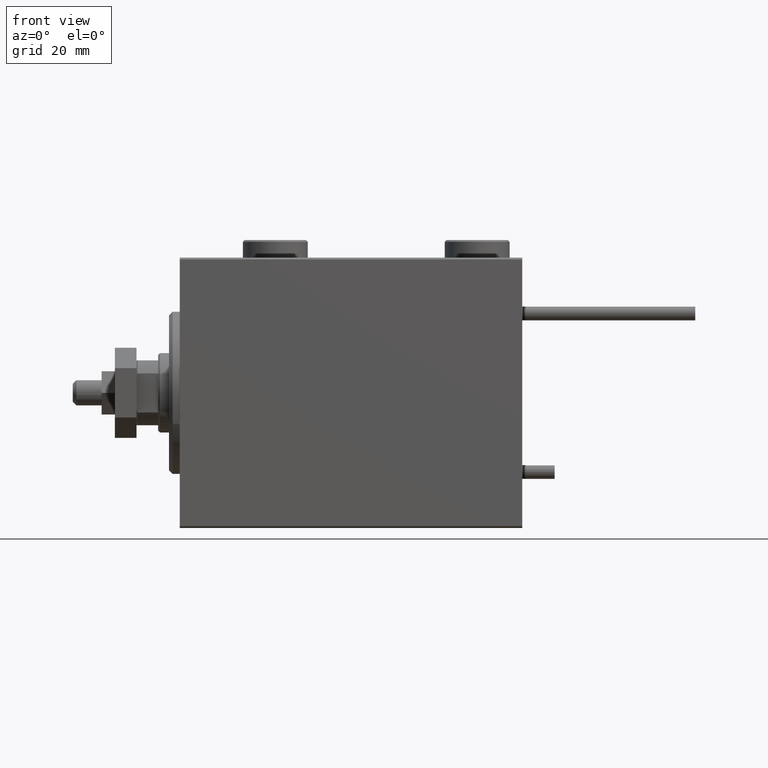
[diagram: clean part render]
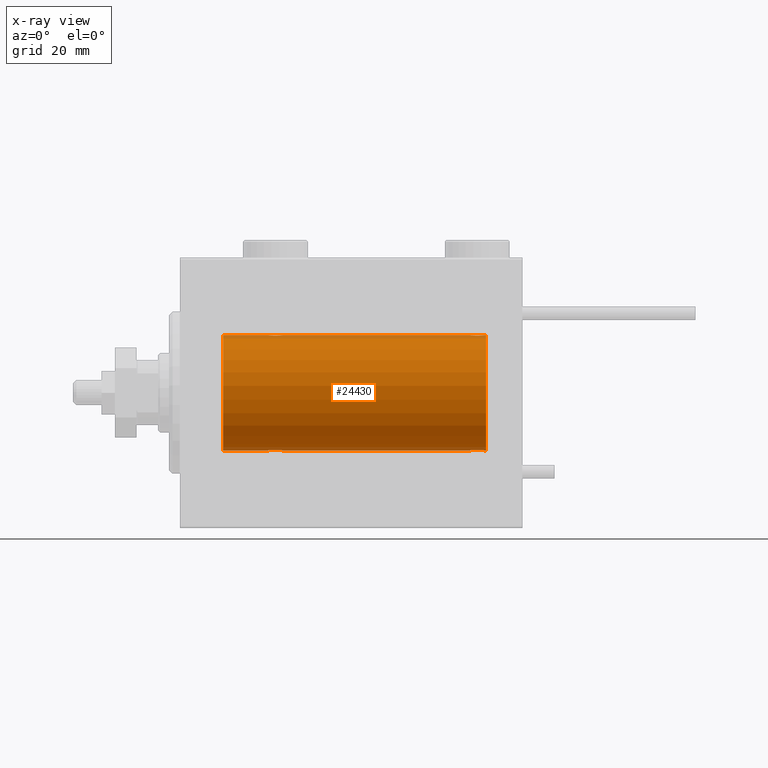
[diagram: x-ray — body ghosted, one internal face saturated and labeled with its STEP entity id]
A machine part, front view, then the same camera in x-ray: the body is ghosted and one INTERNAL B-rep face — a face not visible from any outside direction — is saturated and labeled: STEP entity #24430.
In plain terms, the highlighted cylindrical surface (partial cylindrical patch) has radius 16 mm, axis along (-1, -0, -0).
Its self-contained STEP definition (entity closure, byte-faithful):
#721 = CARTESIAN_POINT ( 'NONE',  ( 27.38592149968495448, -1.797863738508698628, 15.89874935709251247 ) ) ;
#1211 = CARTESIAN_POINT ( 'NONE',  ( 83.50078365753404341, -1.736521253711141854, 15.90565326803670665 ) ) ;
#1604 = DIRECTION ( 'NONE',  ( 0.000000000000000000, 0.000000000000000000, 1.000000000000000000 ) ) ;
#1712 = CARTESIAN_POINT ( 'NONE',  ( 80.90061418674622473, -1.228793614424114056, 15.95381972293797368 ) ) ;
#2211 = CARTESIAN_POINT ( 'NONE',  ( 27.01937114547927266, -1.935780515549989422, -15.88248768234623221 ) ) ;
#2217 = CARTESIAN_POINT ( 'NONE',  ( 80.50000000000004263, -0.2611263091397195146, 16.00000000000000000 ) ) ;
#2726 = CARTESIAN_POINT ( 'NONE',  ( 28.09938581325380724, -1.228793614424118052, -15.95381972293797013 ) ) ;
#2758 = ORIENTED_EDGE ( 'NONE', *, *, #7518, .T. ) ;
#2913 = EDGE_LOOP ( 'NONE', ( #18872, #40933, #22338, #40451, #37908, #2758, #16481, #37561, #17352, #16243, #3818, #37974 ) ) ;
#3818 = ORIENTED_EDGE ( 'NONE', *, *, #6967, .T. ) ;
#4710 = EDGE_CURVE ( 'NONE', #40160, #22631, #35966, .T. ) ;
#4932 = EDGE_CURVE ( 'NONE', #38989, #22385, #45041, .T. ) ;
#5892 = VERTEX_POINT ( 'NONE', #49384 ) ;
#5917 = CARTESIAN_POINT ( 'NONE',  ( 83.50320784791315987, -1.735114343256370262, -15.90580722143557146 ) ) ;
#6457 = EDGE_CURVE ( 'NONE', #44643, #31764, #11840, .T. ) ;
#6627 = CARTESIAN_POINT ( 'NONE',  ( 25.28178127159715061, -1.591545514129670158, -15.92081325887754595 ) ) ;
#6684 = CARTESIAN_POINT ( 'NONE',  ( 81.28178127159715416, -1.591545514129675043, -15.92081325887754417 ) ) ;
#6890 = CARTESIAN_POINT ( 'NONE',  ( 26.36919591423421139, -2.000094120337573944, -15.87449600834271024 ) ) ;
#6967 = EDGE_CURVE ( 'NONE', #41528, #43164, #49333, .T. ) ;
#6981 = CARTESIAN_POINT ( 'NONE',  ( 24.90061418674619986, -1.228793614424120717, 15.95381972293797013 ) ) ;
#7159 = CARTESIAN_POINT ( 'NONE',  ( 25.98335998918949841, -1.936513707523808581, -15.88239801746205160 ) ) ;
#7518 = EDGE_CURVE ( 'NONE', #42066, #5892, #42814, .T. ) ;
#7707 = CARTESIAN_POINT ( 'NONE',  ( 24.50000000000000000, -2.739674480787312950E-23, 16.00000000000000000 ) ) ;
#8530 = EDGE_CURVE ( 'NONE', #44643, #38989, #22766, .T. ) ;
#9094 = CARTESIAN_POINT ( 'NONE',  ( 28.49999999999999645, 1.959434851239213200E-15, -16.00000000000000000 ) ) ;
#9495 = AXIS2_PLACEMENT_3D ( 'NONE', #19970, #35875, #39252 ) ;
#9594 = CARTESIAN_POINT ( 'NONE',  ( 81.85623329282658744, -1.898087287925303457, -15.88709570026284545 ) ) ;
#10091 = CARTESIAN_POINT ( 'NONE',  ( 84.44751141031271402, -0.5244724041436332751, -15.99321727742821331 ) ) ;
#10298 = CARTESIAN_POINT ( 'NONE',  ( 84.09763135957196312, -1.231048876942793413, 15.95364199493483426 ) ) ;
#10852 = CARTESIAN_POINT ( 'NONE',  ( 85.00000000000000000, 0.000000000000000000, 16.00000000000000000 ) ) ;
#10915 = CARTESIAN_POINT ( 'NONE',  ( 24.50000000000000000, -0.2611263091397195146, 15.99999999999999645 ) ) ;
#11726 = EDGE_CURVE ( 'NONE', #5892, #22631, #31976, .T. ) ;
#11840 = CIRCLE ( 'NONE', #45088, 16.00000000000000000 ) ;
#12729 = CARTESIAN_POINT ( 'NONE',  ( 28.49999999999999645, -1.179009551424829015E-15, 16.00000000000000000 ) ) ;
#13086 = DIRECTION ( 'NONE',  ( -1.000000000000000000, 0.000000000000000000, 0.000000000000000000 ) ) ;
#13335 = CARTESIAN_POINT ( 'NONE',  ( 85.00000000000000000, 0.000000000000000000, 0.000000000000000000 ) ) ;
#13458 = CARTESIAN_POINT ( 'NONE',  ( 80.75183372993789988, -1.005876079953899049, 15.97016854943969832 ) ) ;
#13712 = CARTESIAN_POINT ( 'NONE',  ( 83.82104334803406687, -1.507256214862777277, 15.92911555180481820 ) ) ;
#13969 = CARTESIAN_POINT ( 'NONE',  ( 80.50000000000001421, -2.738806733791569837E-23, 16.00000000000000000 ) ) ;
#14016 = CARTESIAN_POINT ( 'NONE',  ( 81.98335998918950906, -1.936513707523812577, -15.88239801746205160 ) ) ;
#14212 = CARTESIAN_POINT ( 'NONE',  ( 83.14376670717345519, -1.898087287925297240, 15.88709570026284723 ) ) ;
#14529 = CARTESIAN_POINT ( 'NONE',  ( 81.61407850031505973, -1.797863738508702180, -15.89874935709250892 ) ) ;
#14737 = CARTESIAN_POINT ( 'NONE',  ( 24.90236864042802978, -1.231048876942801185, -15.95364199493483959 ) ) ;
#15082 = CARTESIAN_POINT ( 'NONE',  ( 25.61153859170719471, -1.796613193944152531, 15.89889131367403685 ) ) ;
#15341 = CARTESIAN_POINT ( 'NONE',  ( 26.63080408576579927, -2.000094120337576609, 15.87449600834271735 ) ) ;
#16125 = CARTESIAN_POINT ( 'NONE',  ( 28.44674004695639624, -0.5272875822566822634, 15.99312147175147025 ) ) ;
#16243 = ORIENTED_EDGE ( 'NONE', *, *, #28488, .F. ) ;
#16481 = ORIENTED_EDGE ( 'NONE', *, *, #11726, .T. ) ;
#17130 = CARTESIAN_POINT ( 'NONE',  ( 81.17695155286794773, -1.505501573616967459, 15.92928245046055302 ) ) ;
#17154 = CARTESIAN_POINT ( 'NONE',  ( 28.49999999999999289, -0.2645044045393371013, 16.00000000000000000 ) ) ;
#17352 = ORIENTED_EDGE ( 'NONE', *, *, #31560, .T. ) ;
#17385 = CARTESIAN_POINT ( 'NONE',  ( 81.49679215208685434, -1.735114343256364267, 15.90580722143557502 ) ) ;
#17625 = CARTESIAN_POINT ( 'NONE',  ( 81.61153859170718761, -1.796613193944148978, 15.89889131367403330 ) ) ;
#17926 = CARTESIAN_POINT ( 'NONE',  ( 82.36919591423422560, -2.000094120337580605, -15.87449600834270669 ) ) ;
#18134 = CARTESIAN_POINT ( 'NONE',  ( 84.44674004695642111, -0.5272875822566781556, 15.99312147175147025 ) ) ;
#18695 = CARTESIAN_POINT ( 'NONE',  ( 81.17895665196597577, -1.507256214862789268, -15.92911555180481464 ) ) ;
#18859 = DIRECTION ( 'NONE',  ( -1.000000000000000000, -0.000000000000000000, -0.000000000000000000 ) ) ;
#18872 = ORIENTED_EDGE ( 'NONE', *, *, #6457, .F. ) ;
#18904 = CARTESIAN_POINT ( 'NONE',  ( 24.55325995304360376, -0.5272875822566845949, -15.99312147175147025 ) ) ;
#18994 = CARTESIAN_POINT ( 'NONE',  ( 25.17695155286791930, -1.505501573616972122, 15.92928245046054769 ) ) ;
#19105 = DIRECTION ( 'NONE',  ( -1.000000000000000000, -0.000000000000000000, -0.000000000000000000 ) ) ;
#19157 = CARTESIAN_POINT ( 'NONE',  ( 27.38846140829280529, -1.796613193944151865, -15.89889131367403330 ) ) ;
#19437 = VECTOR ( 'NONE', #18859, 1000.000000000000000 ) ;
#19970 = CARTESIAN_POINT ( 'NONE',  ( 11.99999999999999645, 0.000000000000000000, 0.000000000000000000 ) ) ;
#20032 = CARTESIAN_POINT ( 'NONE',  ( 28.09763135957198088, -1.231048876942798520, 15.95364199493483071 ) ) ;
#20544 = CARTESIAN_POINT ( 'NONE',  ( 27.82104334803405266, -1.507256214862782606, 15.92911555180481464 ) ) ;
#21832 = CARTESIAN_POINT ( 'NONE',  ( 83.01937114547929752, -1.935780515549991199, -15.88248768234623576 ) ) ;
#22087 = CARTESIAN_POINT ( 'NONE',  ( 81.49921634246595659, -1.736521253711148072, -15.90565326803670310 ) ) ;
#22338 = ORIENTED_EDGE ( 'NONE', *, *, #4932, .T. ) ;
#22385 = VERTEX_POINT ( 'NONE', #42414 ) ;
#22547 = CARTESIAN_POINT ( 'NONE',  ( 27.14636362870458086, -1.897207606501645438, -15.88720136683947182 ) ) ;
#22605 = CARTESIAN_POINT ( 'NONE',  ( 82.23917179650634068, -1.987201773464433607, -15.87613558886576470 ) ) ;
#22619 = CARTESIAN_POINT ( 'NONE',  ( 85.00000000000000000, 0.000000000000000000, 16.00000000000000000 ) ) ;
#22631 = VERTEX_POINT ( 'NONE', #26221 ) ;
#22766 = LINE ( 'NONE', #38654, #19437 ) ;
#22815 = CARTESIAN_POINT ( 'NONE',  ( 27.82304844713207004, -1.505501573616970568, -15.92928245046055302 ) ) ;
#23004 = EDGE_CURVE ( 'NONE', #31764, #43164, #35380, .T. ) ;
#23152 = LINE ( 'NONE', #22619, #39098 ) ;
#23177 = EDGE_CURVE ( 'NONE', #28310, #42066, #33999, .T. ) ;
#23989 = VECTOR ( 'NONE', #31470, 1000.000000000000000 ) ;
#24289 = VECTOR ( 'NONE', #39084, 1000.000000000000000 ) ;
#24430 = ADVANCED_FACE ( 'NONE', ( #48785 ), #28485, .F. ) ;
#25195 = CARTESIAN_POINT ( 'NONE',  ( 82.63080408576580282, -2.000094120337573944, 15.87449600834271024 ) ) ;
#25510 = CARTESIAN_POINT ( 'NONE',  ( 84.24816627006212855, -1.005876079953902824, -15.97016854943970188 ) ) ;
#25708 = CARTESIAN_POINT ( 'NONE',  ( 81.27971966521590730, -1.589957129871030439, 15.92097237843275259 ) ) ;
#25756 = CARTESIAN_POINT ( 'NONE',  ( 83.82304844713208070, -1.505501573616973898, -15.92928245046055302 ) ) ;
#25950 = CARTESIAN_POINT ( 'NONE',  ( 24.50000000000000000, -2.103177090749212087E-15, -16.00000000000000000 ) ) ;
#25956 = CARTESIAN_POINT ( 'NONE',  ( 83.71821872840287426, -1.591545514129668826, 15.92081325887754417 ) ) ;
#26007 = CARTESIAN_POINT ( 'NONE',  ( 83.72028033478413533, -1.589957129871036212, -15.92097237843274904 ) ) ;
#26221 = CARTESIAN_POINT ( 'NONE',  ( 11.99999999999999645, 0.000000000000000000, 16.00000000000000000 ) ) ;
#26601 = VECTOR ( 'NONE', #34921, 1000.000000000000000 ) ;
#26816 = CARTESIAN_POINT ( 'NONE',  ( 24.55248858968731440, -0.5244724041436320539, 15.99321727742821331 ) ) ;
#27085 = EDGE_CURVE ( 'NONE', #22385, #28310, #31005, .T. ) ;
#27349 = CARTESIAN_POINT ( 'NONE',  ( 26.76082820349363800, -1.987201773464431387, 15.87613558886576115 ) ) ;
#27634 = CARTESIAN_POINT ( 'NONE',  ( 85.00000000000000000, 0.000000000000000000, 16.00000000000000000 ) ) ;
#28310 = VERTEX_POINT ( 'NONE', #9094 ) ;
#28485 = CYLINDRICAL_SURFACE ( 'NONE', #39834, 16.00000000000000000 ) ;
#28488 = EDGE_CURVE ( 'NONE', #41528, #41369, #23152, .T. ) ;
#28593 = CARTESIAN_POINT ( 'NONE',  ( 85.00000000000000000, 0.000000000000000000, 16.00000000000000000 ) ) ;
#28878 = CARTESIAN_POINT ( 'NONE',  ( 27.50078365753405052, -1.736521253711144519, 15.90565326803671020 ) ) ;
#29056 = B_SPLINE_CURVE_WITH_KNOTS ( 'NONE', 3,
 ( #42968, #10915, #26816, #42699, #6981, #18994, #34888, #50761, #15082, #30974, #46846, #35151, #51024, #15341, #27349, #43227, #35934, #721, #28878, #43745, #20544, #20032, #40351, #16125, #17154, #12729 ),
 .UNSPECIFIED., .F., .F.,
 ( 4, 2, 2, 2, 2, 2, 2, 2, 2, 2, 2, 2, 4 ),
 ( 0.006259031236593864261, 0.007041222816026932417, 0.007823414395460000573, 0.008214510185176535084, 0.008605605974893067861, 0.008996701764609602373, 0.009387797554326136884, 0.009778893344042669661, 0.01016998913375920244, 0.01056108492347573695, 0.01095218071319226973, 0.01173437229262533008, 0.01251656387205839042 ),
 .UNSPECIFIED. ) ;
#29105 = CARTESIAN_POINT ( 'NONE',  ( 82.23629537121827582, -1.986819684797419105, 15.87618369521984185 ) ) ;
#29354 = CARTESIAN_POINT ( 'NONE',  ( 81.85363637129547953, -1.897207606501643218, 15.88720136683947182 ) ) ;
#29493 = CARTESIAN_POINT ( 'NONE',  ( 85.00000000000000000, 0.000000000000000000, 0.000000000000000000 ) ) ;
#29858 = CARTESIAN_POINT ( 'NONE',  ( 25.17895665196595090, -1.507256214862784161, -15.92911555180481820 ) ) ;
#29863 = CARTESIAN_POINT ( 'NONE',  ( 82.76082820349364511, -1.987201773464428056, 15.87613558886576826 ) ) ;
#29911 = CARTESIAN_POINT ( 'NONE',  ( 80.75321871145308705, -1.008257970366817746, -15.97001510549667103 ) ) ;
#30105 = CARTESIAN_POINT ( 'NONE',  ( 28.24816627006211434, -1.005876079953898827, -15.97016854943970188 ) ) ;
#30162 = CARTESIAN_POINT ( 'NONE',  ( 80.50000000000001421, -8.578174582294765095E-15, -16.00000000000000000 ) ) ;
#30423 = CARTESIAN_POINT ( 'NONE',  ( 80.55325995304360731, -0.5272875822566887027, -15.99312147175147381 ) ) ;
#30974 = CARTESIAN_POINT ( 'NONE',  ( 25.85363637129542269, -1.897207606501645438, 15.88720136683947537 ) ) ;
#31005 = LINE ( 'NONE', #47412, #26601 ) ;
#31470 = DIRECTION ( 'NONE',  ( -1.000000000000000000, -0.000000000000000000, -0.000000000000000000 ) ) ;
#31560 = EDGE_CURVE ( 'NONE', #40160, #41369, #29056, .T. ) ;
#31764 = VERTEX_POINT ( 'NONE', #10852 ) ;
#31976 = CIRCLE ( 'NONE', #9495, 16.00000000000000000 ) ;
#33390 = DIRECTION ( 'NONE',  ( 0.000000000000000000, 0.000000000000000000, 1.000000000000000000 ) ) ;
#33554 = CARTESIAN_POINT ( 'NONE',  ( 24.50000000000000000, -2.103177090749212087E-15, -16.00000000000000000 ) ) ;
#33771 = CARTESIAN_POINT ( 'NONE',  ( 81.98062885452075932, -1.935780515549992087, 15.88248768234623576 ) ) ;
#33999 = B_SPLINE_CURVE_WITH_KNOTS ( 'NONE', 3,
 ( #49885, #38699, #45731, #30105, #2726, #22815, #42344, #50933, #19157, #22547, #2211, #35060, #42606, #6890, #46240, #7159, #34533, #38440, #50416, #6627, #29858, #14737, #42086, #18904, #46759, #25950 ),
 .UNSPECIFIED., .F., .F.,
 ( 4, 2, 2, 2, 2, 2, 2, 2, 2, 2, 2, 2, 4 ),
 ( 0.006259031236593880741, 0.007041222816026947162, 0.007823414395460012716, 0.008214510185176545493, 0.008605605974893078269, 0.008996701764609611046, 0.009387797554326143823, 0.009778893344042676600, 0.01016998913375920938, 0.01056108492347574215, 0.01095218071319227493, 0.01173437229262534742, 0.01251656387205841818 ),
 .UNSPECIFIED. ) ;
#34337 = VECTOR ( 'NONE', #19105, 1000.000000000000000 ) ;
#34533 = CARTESIAN_POINT ( 'NONE',  ( 25.85623329282658389, -1.898087287925296573, -15.88709570026284190 ) ) ;
#34888 = CARTESIAN_POINT ( 'NONE',  ( 25.27971966521589664, -1.589957129871031105, 15.92097237843274549 ) ) ;
#34921 = DIRECTION ( 'NONE',  ( -1.000000000000000000, -0.000000000000000000, -0.000000000000000000 ) ) ;
#35060 = CARTESIAN_POINT ( 'NONE',  ( 26.76370462878176326, -1.986819684797417551, -15.87618369521984185 ) ) ;
#35151 = CARTESIAN_POINT ( 'NONE',  ( 26.23629537121825095, -1.986819684797419994, 15.87618369521984185 ) ) ;
#35380 = LINE ( 'NONE', #28593, #23989 ) ;
#35875 = DIRECTION ( 'NONE',  ( -1.000000000000000000, 0.000000000000000000, 0.000000000000000000 ) ) ;
#35934 = CARTESIAN_POINT ( 'NONE',  ( 27.14376670717340900, -1.898087287925299016, 15.88709570026284545 ) ) ;
#35966 = LINE ( 'NONE', #27634, #24289 ) ;
#36725 = CARTESIAN_POINT ( 'NONE',  ( 85.00000000000000000, 1.959434878635765131E-15, -16.00000000000000000 ) ) ;
#37322 = DIRECTION ( 'NONE',  ( -1.000000000000000000, -0.000000000000000000, -0.000000000000000000 ) ) ;
#37481 = CARTESIAN_POINT ( 'NONE',  ( 83.14636362870456310, -1.897207606501649435, -15.88720136683946826 ) ) ;
#37561 = ORIENTED_EDGE ( 'NONE', *, *, #4710, .F. ) ;
#37681 = CARTESIAN_POINT ( 'NONE',  ( 80.55248858968734282, -0.5244724041436314987, 15.99321727742821331 ) ) ;
#37908 = ORIENTED_EDGE ( 'NONE', *, *, #23177, .T. ) ;
#37933 = CARTESIAN_POINT ( 'NONE',  ( 84.24678128854695558, -1.008257970366807976, 15.97001510549667813 ) ) ;
#37974 = ORIENTED_EDGE ( 'NONE', *, *, #23004, .F. ) ;
#38440 = CARTESIAN_POINT ( 'NONE',  ( 25.61407850031505617, -1.797863738508696851, -15.89874935709250892 ) ) ;
#38654 = CARTESIAN_POINT ( 'NONE',  ( 85.00000000000000000, 1.959434878635765131E-15, -16.00000000000000000 ) ) ;
#38699 = CARTESIAN_POINT ( 'NONE',  ( 28.50000000000000000, -0.2611263091397181824, -16.00000000000000000 ) ) ;
#38915 = CARTESIAN_POINT ( 'NONE',  ( 85.00000000000000000, 1.959434878635765131E-15, -16.00000000000000000 ) ) ;
#38989 = VERTEX_POINT ( 'NONE', #42952 ) ;
#39036 = DIRECTION ( 'NONE',  ( -1.000000000000000000, -0.000000000000000000, -0.000000000000000000 ) ) ;
#39084 = DIRECTION ( 'NONE',  ( -1.000000000000000000, -0.000000000000000000, -0.000000000000000000 ) ) ;
#39098 = VECTOR ( 'NONE', #39036, 1000.000000000000000 ) ;
#39252 = DIRECTION ( 'NONE',  ( 0.000000000000000000, 0.000000000000000000, 1.000000000000000000 ) ) ;
#39834 = AXIS2_PLACEMENT_3D ( 'NONE', #29493, #37322, #1604 ) ;
#40160 = VERTEX_POINT ( 'NONE', #7707 ) ;
#40351 = CARTESIAN_POINT ( 'NONE',  ( 28.24678128854693426, -1.008257970366811529, 15.97001510549667103 ) ) ;
#40451 = ORIENTED_EDGE ( 'NONE', *, *, #27085, .T. ) ;
#40933 = ORIENTED_EDGE ( 'NONE', *, *, #8530, .T. ) ;
#41369 = VERTEX_POINT ( 'NONE', #50907 ) ;
#41387 = CARTESIAN_POINT ( 'NONE',  ( 80.50000000000002842, -0.2645044045393486476, -16.00000000000000000 ) ) ;
#41528 = VERTEX_POINT ( 'NONE', #45398 ) ;
#41582 = CARTESIAN_POINT ( 'NONE',  ( 83.01664001081050515, -1.936513707523806138, 15.88239801746206226 ) ) ;
#41630 = CARTESIAN_POINT ( 'NONE',  ( 84.50000000000001421, -0.2611263091397177938, -16.00000000000000000 ) ) ;
#42066 = VERTEX_POINT ( 'NONE', #33554 ) ;
#42086 = CARTESIAN_POINT ( 'NONE',  ( 24.75321871145306218, -1.008257970366812417, -15.97001510549667458 ) ) ;
#42091 = CARTESIAN_POINT ( 'NONE',  ( 84.50000000000001421, 3.332617433452402987E-15, 16.00000000000000000 ) ) ;
#42145 = CARTESIAN_POINT ( 'NONE',  ( 83.38846140829284082, -1.796613193944154974, -15.89889131367402975 ) ) ;
#42344 = CARTESIAN_POINT ( 'NONE',  ( 27.72028033478411402, -1.589957129871026664, -15.92097237843274549 ) ) ;
#42414 = CARTESIAN_POINT ( 'NONE',  ( 80.50000000000001421, -8.578174582294765095E-15, -16.00000000000000000 ) ) ;
#42606 = CARTESIAN_POINT ( 'NONE',  ( 26.63366663175619209, -1.999904855391104963, -15.87451985347842687 ) ) ;
#42699 = CARTESIAN_POINT ( 'NONE',  ( 24.75183372993787856, -1.005876079953901270, 15.97016854943969832 ) ) ;
#42814 = LINE ( 'NONE', #38915, #34337 ) ;
#42952 = CARTESIAN_POINT ( 'NONE',  ( 84.50000000000001421, 1.959434851248285101E-15, -16.00000000000000000 ) ) ;
#42968 = CARTESIAN_POINT ( 'NONE',  ( 24.50000000000000000, -2.739674480787312950E-23, 16.00000000000000000 ) ) ;
#43164 = VERTEX_POINT ( 'NONE', #44140 ) ;
#43227 = CARTESIAN_POINT ( 'NONE',  ( 27.01664001081050870, -1.936513707523810801, 15.88239801746205160 ) ) ;
#43745 = CARTESIAN_POINT ( 'NONE',  ( 27.71821872840284584, -1.591545514129669270, 15.92081325887754595 ) ) ;
#44140 = CARTESIAN_POINT ( 'NONE',  ( 84.50000000000001421, 3.332617433452402987E-15, 16.00000000000000000 ) ) ;
#44643 = VERTEX_POINT ( 'NONE', #36725 ) ;
#44987 = CARTESIAN_POINT ( 'NONE',  ( 82.36633336824384344, -1.999904855391104075, 15.87451985347843042 ) ) ;
#45041 = B_SPLINE_CURVE_WITH_KNOTS ( 'NONE', 3,
 ( #46041, #41630, #10091, #25510, #49944, #25756, #26007, #5917, #42145, #37481, #21832, #45289, #49695, #17926, #22605, #14016, #9594, #14529, #22087, #6684, #18695, #45541, #29911, #30423, #41387, #30162 ),
 .UNSPECIFIED., .F., .F.,
 ( 4, 2, 2, 2, 2, 2, 2, 2, 2, 2, 2, 2, 4 ),
 ( 0.006259031236593878139, 0.007041222816026954968, 0.007823414395460031798, 0.008214510185176569779, 0.008605605974893107760, 0.008996701764609645741, 0.009387797554326183722, 0.009778893344042721703, 0.01016998913375926142, 0.01056108492347579940, 0.01095218071319233738, 0.01173437229262538559, 0.01251656387205843206 ),
 .UNSPECIFIED. ) ;
#45088 = AXIS2_PLACEMENT_3D ( 'NONE', #13335, #13086, #33390 ) ;
#45237 = CARTESIAN_POINT ( 'NONE',  ( 83.38592149968495448, -1.797863738508695963, 15.89874935709250536 ) ) ;
#45289 = CARTESIAN_POINT ( 'NONE',  ( 82.76370462878178103, -1.986819684797421326, -15.87618369521984185 ) ) ;
#45398 = CARTESIAN_POINT ( 'NONE',  ( 80.50000000000001421, -2.738806733791569837E-23, 16.00000000000000000 ) ) ;
#45541 = CARTESIAN_POINT ( 'NONE',  ( 80.90236864042802267, -1.231048876942805403, -15.95364199493483071 ) ) ;
#45731 = CARTESIAN_POINT ( 'NONE',  ( 28.44751141031268915, -0.5244724041436299444, -15.99321727742820975 ) ) ;
#46041 = CARTESIAN_POINT ( 'NONE',  ( 84.50000000000001421, 1.959434851248285101E-15, -16.00000000000000000 ) ) ;
#46240 = CARTESIAN_POINT ( 'NONE',  ( 26.23917179650635845, -1.987201773464428500, -15.87613558886575760 ) ) ;
#46759 = CARTESIAN_POINT ( 'NONE',  ( 24.50000000000000000, -0.2645044045393401544, -16.00000000000000355 ) ) ;
#46846 = CARTESIAN_POINT ( 'NONE',  ( 25.98062885452073090, -1.935780515549991199, 15.88248768234623576 ) ) ;
#47412 = CARTESIAN_POINT ( 'NONE',  ( 85.00000000000000000, 1.959434878635765131E-15, -16.00000000000000000 ) ) ;
#48785 = FACE_OUTER_BOUND ( 'NONE', #2913, .T. ) ;
#48902 = CARTESIAN_POINT ( 'NONE',  ( 84.50000000000000000, -0.2645044045393377119, 16.00000000000000355 ) ) ;
#49333 = B_SPLINE_CURVE_WITH_KNOTS ( 'NONE', 3,
 ( #13969, #2217, #37681, #13458, #1712, #17130, #25708, #17385, #17625, #29354, #33771, #29105, #44987, #25195, #29863, #41582, #14212, #45237, #1211, #25956, #13712, #10298, #37933, #18134, #48902, #42091 ),
 .UNSPECIFIED., .F., .F.,
 ( 4, 2, 2, 2, 2, 2, 2, 2, 2, 2, 2, 2, 4 ),
 ( 0.006259031236593865129, 0.007041222816026940223, 0.007823414395460016185, 0.008214510185176552431, 0.008605605974893090412, 0.008996701764609628393, 0.009387797554326166374, 0.009778893344042704355, 0.01016998913375924060, 0.01056108492347577858, 0.01095218071319231656, 0.01173437229262536130, 0.01251656387205840604 ),
 .UNSPECIFIED. ) ;
#49384 = CARTESIAN_POINT ( 'NONE',  ( 11.99999999999999645, 1.959434878635765131E-15, -16.00000000000000000 ) ) ;
#49695 = CARTESIAN_POINT ( 'NONE',  ( 82.63366663175622762, -1.999904855391108960, -15.87451985347842687 ) ) ;
#49885 = CARTESIAN_POINT ( 'NONE',  ( 28.49999999999999645, 1.959434851239213200E-15, -16.00000000000000000 ) ) ;
#49944 = CARTESIAN_POINT ( 'NONE',  ( 84.09938581325381790, -1.228793614424119385, -15.95381972293797013 ) ) ;
#50416 = CARTESIAN_POINT ( 'NONE',  ( 25.49921634246595303, -1.736521253711143853, -15.90565326803670665 ) ) ;
#50761 = CARTESIAN_POINT ( 'NONE',  ( 25.49679215208682592, -1.735114343256365155, 15.90580722143557502 ) ) ;
#50907 = CARTESIAN_POINT ( 'NONE',  ( 28.49999999999999645, -1.179009551424829015E-15, 16.00000000000000000 ) ) ;
#50933 = CARTESIAN_POINT ( 'NONE',  ( 27.50320784791317053, -1.735114343256361158, -15.90580722143557146 ) ) ;
#51024 = CARTESIAN_POINT ( 'NONE',  ( 26.36633336824380436, -1.999904855391106295, 15.87451985347842687 ) ) ;